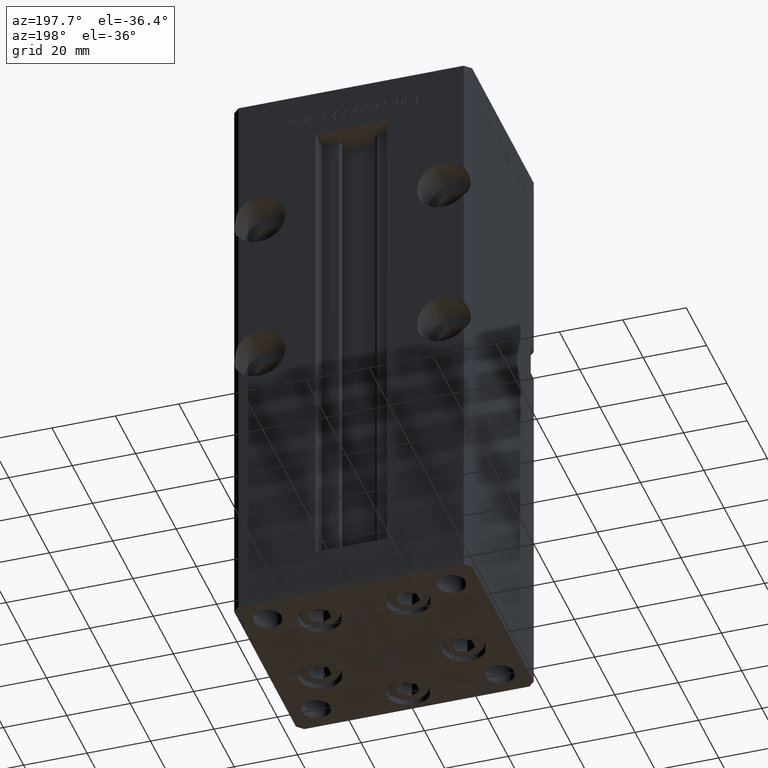
[diagram: clean part render]
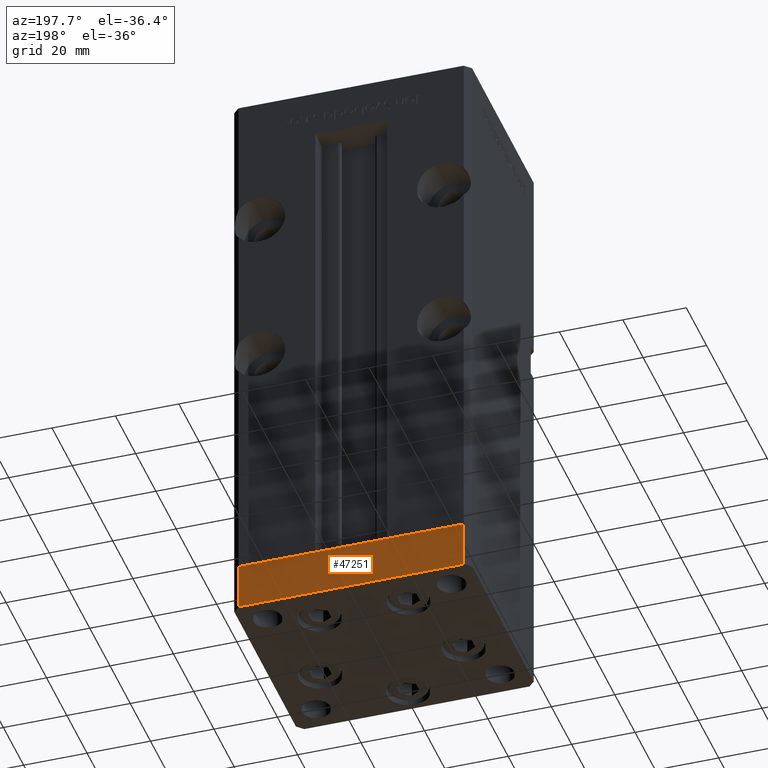
[diagram: same view with one face highlighted and labeled with its STEP entity id]
A machine part, auxiliary view. The second image highlights one B-rep face of the part: STEP entity #47251.
In plain terms, the highlighted planar face has unit normal (-0, 1, 0).
Its self-contained STEP definition (entity closure, byte-faithful):
#1965 = EDGE_CURVE ( 'NONE', #43738, #19156, #35968, .T. ) ;
#3729 = VECTOR ( 'NONE', #29708, 1000.000000000000000 ) ;
#6616 = EDGE_LOOP ( 'NONE', ( #13958, #28714, #24990, #30149 ) ) ;
#7483 = CARTESIAN_POINT ( 'NONE',  ( 35.49999999999992184, 32.50000000000000711, 0.000000000000000000 ) ) ;
#7985 = CARTESIAN_POINT ( 'NONE',  ( 35.49999999999992184, 32.50000000000000711, -15.00000000000000000 ) ) ;
#9801 = LINE ( 'NONE', #50135, #3729 ) ;
#10984 = EDGE_CURVE ( 'NONE', #43738, #18351, #40325, .T. ) ;
#11101 = DIRECTION ( 'NONE',  ( -1.000000000000000000, -1.954618001100629052E-16, 0.000000000000000000 ) ) ;
#11617 = PLANE ( 'NONE',  #45382 ) ;
#13958 = ORIENTED_EDGE ( 'NONE', *, *, #27378, .F. ) ;
#15819 = VECTOR ( 'NONE', #48339, 1000.000000000000000 ) ;
#16822 = EDGE_CURVE ( 'NONE', #19156, #30386, #9801, .T. ) ;
#18351 = VERTEX_POINT ( 'NONE', #7483 ) ;
#19156 = VERTEX_POINT ( 'NONE', #43246 ) ;
#19256 = CARTESIAN_POINT ( 'NONE',  ( 35.49999999999992184, 32.50000000000000711, 0.000000000000000000 ) ) ;
#20145 = CARTESIAN_POINT ( 'NONE',  ( 35.49999999999992184, 32.50000000000000711, -15.00000000000000000 ) ) ;
#21235 = VECTOR ( 'NONE', #36435, 1000.000000000000000 ) ;
#23293 = LINE ( 'NONE', #19256, #21235 ) ;
#24512 = CARTESIAN_POINT ( 'NONE',  ( 35.49999999999992184, 32.50000000000000711, -15.00000000000000000 ) ) ;
#24990 = ORIENTED_EDGE ( 'NONE', *, *, #1965, .T. ) ;
#26581 = CARTESIAN_POINT ( 'NONE',  ( 35.49999999999992184, 32.50000000000000711, -15.00000000000000000 ) ) ;
#27378 = EDGE_CURVE ( 'NONE', #18351, #30386, #23293, .T. ) ;
#28714 = ORIENTED_EDGE ( 'NONE', *, *, #10984, .F. ) ;
#29708 = DIRECTION ( 'NONE',  ( 0.000000000000000000, 0.000000000000000000, 1.000000000000000000 ) ) ;
#30149 = ORIENTED_EDGE ( 'NONE', *, *, #16822, .T. ) ;
#30386 = VERTEX_POINT ( 'NONE', #39237 ) ;
#34609 = VECTOR ( 'NONE', #48913, 1000.000000000000000 ) ;
#35968 = LINE ( 'NONE', #7985, #15819 ) ;
#36435 = DIRECTION ( 'NONE',  ( -1.000000000000000000, -1.954618001100629052E-16, 0.000000000000000000 ) ) ;
#39237 = CARTESIAN_POINT ( 'NONE',  ( -35.50000000000002842, 32.49999999999999289, 0.000000000000000000 ) ) ;
#40325 = LINE ( 'NONE', #20145, #34609 ) ;
#43246 = CARTESIAN_POINT ( 'NONE',  ( -35.50000000000002842, 32.49999999999999289, -15.00000000000000000 ) ) ;
#43738 = VERTEX_POINT ( 'NONE', #26581 ) ;
#44428 = DIRECTION ( 'NONE',  ( -1.954618001100629052E-16, 1.000000000000000000, 0.000000000000000000 ) ) ;
#45382 = AXIS2_PLACEMENT_3D ( 'NONE', #24512, #44428, #11101 ) ;
#47251 = ADVANCED_FACE ( 'NONE', ( #48461 ), #11617, .T. ) ;
#48339 = DIRECTION ( 'NONE',  ( -1.000000000000000000, -1.954618001100629052E-16, 0.000000000000000000 ) ) ;
#48461 = FACE_OUTER_BOUND ( 'NONE', #6616, .T. ) ;
#48913 = DIRECTION ( 'NONE',  ( 0.000000000000000000, 0.000000000000000000, 1.000000000000000000 ) ) ;
#50135 = CARTESIAN_POINT ( 'NONE',  ( -35.50000000000002842, 32.49999999999999289, -15.00000000000000000 ) ) ;